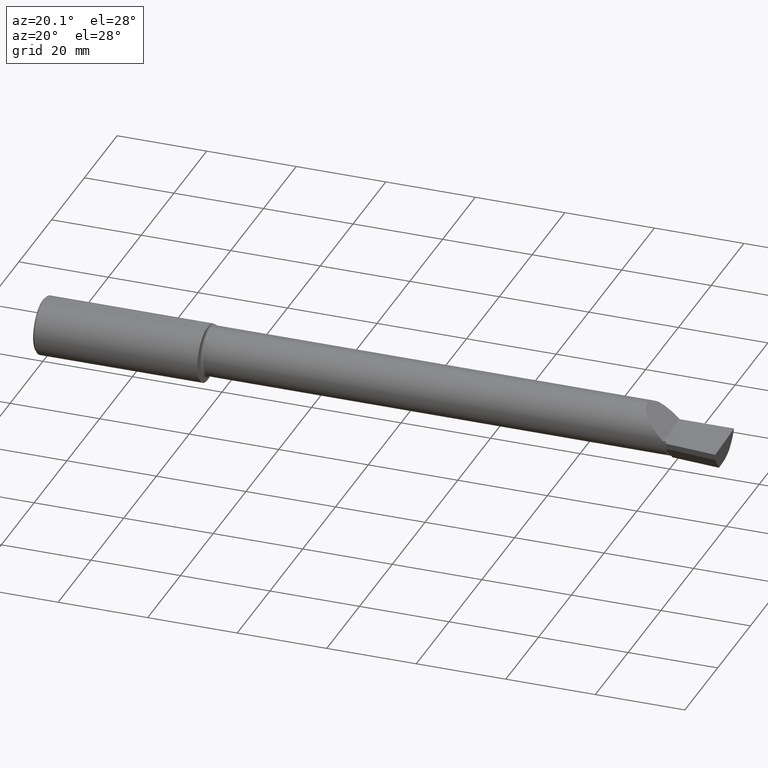
[diagram: clean part render]
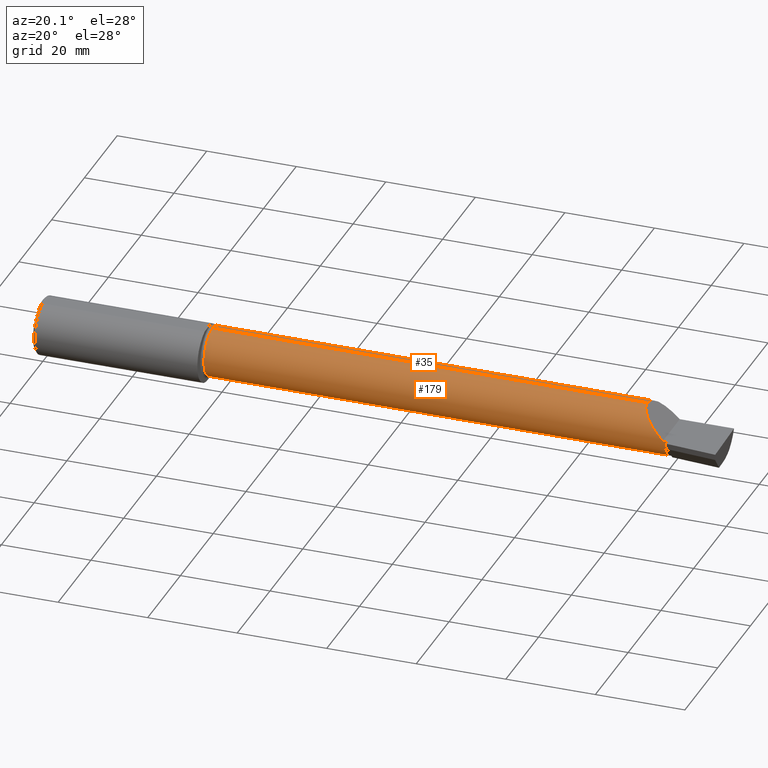
[diagram: same view with one multi-face feature highlighted, each face labeled with its STEP entity id]
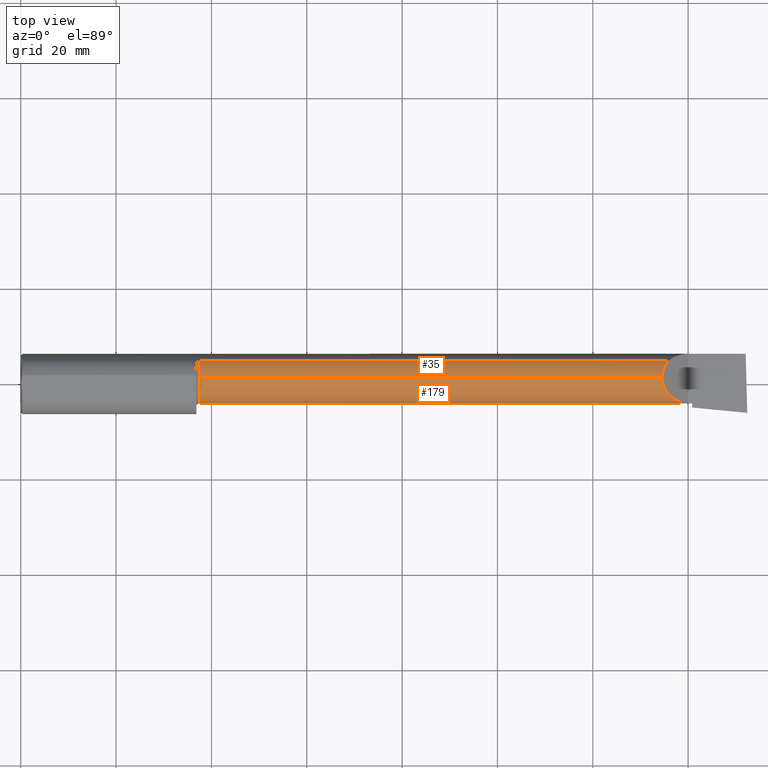
[diagram: same view with one multi-face feature highlighted, each face labeled with its STEP entity id]
A machine part, auxiliary view. The highlighted faces form ONE feature: a constant-radius fillet chain: 2 tangent blend faces with common blend radius 5.414 mm. The faces share edges in the B-rep.
A second angle (top view) of the same feature is appended — it is thin or edge-on in the first view.
Their STEP definitions:
[1] entity #35 (Cylinder):
#1 = CARTESIAN_POINT ( 'NONE',  ( 5.344079160038587517, 0.1868028301886762721, 0.1659208399614119367 ) ) ;
#35 = ADVANCED_FACE ( 'NONE', ( #693 ), #346, .T. ) ;
#61 = CARTESIAN_POINT ( 'NONE',  ( 0.000000000000000000, 0.05299999999999998462, 0.000000000000000000 ) ) ;
#101 = VERTEX_POINT ( 'NONE', #499 ) ;
#194 = DIRECTION ( 'NONE',  ( 1.000000000000000000, 0.000000000000000000, 0.000000000000000000 ) ) ;
#201 = ORIENTED_EDGE ( 'NONE', *, *, #610, .F. ) ;
#204 = LINE ( 'NONE', #440, #494 ) ;
#211 = AXIS2_PLACEMENT_3D ( 'NONE', #388, #685, #744 ) ;
#226 = ORIENTED_EDGE ( 'NONE', *, *, #305, .F. ) ;
#229 = EDGE_CURVE ( 'NONE', #670, #750, #204, .T. ) ;
#249 = ORIENTED_EDGE ( 'NONE', *, *, #673, .F. ) ;
#271 = VERTEX_POINT ( 'NONE', #374 ) ;
#280 = CARTESIAN_POINT ( 'NONE',  ( 5.344079160038587517, 0.1868028301886762721, 0.1659208399614119367 ) ) ;
#282 = ORIENTED_EDGE ( 'NONE', *, *, #229, .F. ) ;
#292 = EDGE_LOOP ( 'NONE', ( #226, #201, #282, #249 ) ) ;
#295 = VECTOR ( 'NONE', #558, 39.37007874015748143 ) ;
#305 = EDGE_CURVE ( 'NONE', #271, #101, #370, .T. ) ;
#325 = CARTESIAN_POINT ( 'NONE',  ( 0.000000000000000000, 0.05299999999999998462, 0.2131500000000002282 ) ) ;
#337 = CARTESIAN_POINT ( 'NONE',  ( 5.296849999999999170, 0.05299999999999998462, 0.2131500000000002282 ) ) ;
#339 = DIRECTION ( 'NONE',  ( 0.000000000000000000, 0.000000000000000000, 1.000000000000000000 ) ) ;
#346 = CYLINDRICAL_SURFACE ( 'NONE', #515, 0.2131500000000002282 ) ;
#370 = LINE ( 'NONE', #325, #295 ) ;
#374 = CARTESIAN_POINT ( 'NONE',  ( 5.296849999999999170, 0.05299999999999998462, 0.2131500000000002282 ) ) ;
#388 = CARTESIAN_POINT ( 'NONE',  ( 1.475000000000000533, 0.05299999999999998462, 0.000000000000000000 ) ) ;
#390 = DIRECTION ( 'NONE',  ( -1.000000000000000000, -0.000000000000000000, -0.000000000000000000 ) ) ;
#391 = CARTESIAN_POINT ( 'NONE',  ( 5.296849999999998282, 0.1021668565906554971, 0.2131500000000002837 ) ) ;
#434 =( BOUNDED_CURVE ( )  B_SPLINE_CURVE ( 3, ( #280, #691, #391, #337 ),
 .UNSPECIFIED., .F., .F. ) 
 B_SPLINE_CURVE_WITH_KNOTS ( ( 4, 4 ),
 ( 5.604538515477368144, 6.283185307179586232 ),
 .UNSPECIFIED. ) 
 CURVE ( )  GEOMETRIC_REPRESENTATION_ITEM ( )  RATIONAL_B_SPLINE_CURVE ( ( 1.000000000000000000, 0.9619867256453047411, 0.9619867256453047411, 1.000000000000000000 ) ) 
 REPRESENTATION_ITEM ( '' )  );
#440 = CARTESIAN_POINT ( 'NONE',  ( 3.510000000000000675, 0.1868028301886783815, 0.1659208399614098550 ) ) ;
#447 = CARTESIAN_POINT ( 'NONE',  ( 1.475000000000000533, 0.1868028301886768827, 0.1659208399614114093 ) ) ;
#450 = CIRCLE ( 'NONE', #211, 0.2131500000000005057 ) ;
#494 = VECTOR ( 'NONE', #194, 39.37007874015748143 ) ;
#499 = CARTESIAN_POINT ( 'NONE',  ( 1.475000000000000533, 0.05299999999999998462, 0.2131500000000005057 ) ) ;
#515 = AXIS2_PLACEMENT_3D ( 'NONE', #61, #390, #339 ) ;
#558 = DIRECTION ( 'NONE',  ( -1.000000000000000000, -0.000000000000000000, -0.000000000000000000 ) ) ;
#610 = EDGE_CURVE ( 'NONE', #750, #271, #434, .T. ) ;
#670 = VERTEX_POINT ( 'NONE', #447 ) ;
#673 = EDGE_CURVE ( 'NONE', #101, #670, #450, .T. ) ;
#685 = DIRECTION ( 'NONE',  ( -1.000000000000000000, -0.000000000000000000, -0.000000000000000000 ) ) ;
#691 = CARTESIAN_POINT ( 'NONE',  ( 5.313215146136122335, 0.1485302233682031792, 0.1967848538638768963 ) ) ;
#693 = FACE_OUTER_BOUND ( 'NONE', #292, .T. ) ;
#744 = DIRECTION ( 'NONE',  ( 0.000000000000000000, 0.000000000000000000, 1.000000000000000000 ) ) ;
#750 = VERTEX_POINT ( 'NONE', #1 ) ;
[2] entity #179 (Cylinder):
#23 = CARTESIAN_POINT ( 'NONE',  ( 5.510000000000000675, -0.1601500000000002644, -1.849216666712503932E-16 ) ) ;
#37 = CARTESIAN_POINT ( 'NONE',  ( 5.540481425188587217, -0.04977693083852387235, -0.1867379188486353037 ) ) ;
#42 = EDGE_CURVE ( 'NONE', #392, #170, #724, .T. ) ;
#69 = CARTESIAN_POINT ( 'NONE',  ( 5.522499172395929357, -0.1369718963205484863, -0.09666230448512427853 ) ) ;
#70 = CYLINDRICAL_SURFACE ( 'NONE', #615, 0.2131500000000002282 ) ;
#77 = DIRECTION ( 'NONE',  ( 1.000000000000000000, 0.000000000000000000, 0.000000000000000000 ) ) ;
#101 = VERTEX_POINT ( 'NONE', #499 ) ;
#108 = CARTESIAN_POINT ( 'NONE',  ( 5.510000000000000675, -0.1601500000000002644, -1.849216666712503932E-16 ) ) ;
#109 = VERTEX_POINT ( 'NONE', #657 ) ;
#119 = ORIENTED_EDGE ( 'NONE', *, *, #240, .T. ) ;
#123 = CARTESIAN_POINT ( 'NONE',  ( 5.385139620819824557, -0.1601500000000002644, 0.1248603791801748963 ) ) ;
#125 = CARTESIAN_POINT ( 'NONE',  ( 0.000000000000000000, 0.05299999999999998462, 0.000000000000000000 ) ) ;
#145 = DIRECTION ( 'NONE',  ( -1.000000000000000000, -0.000000000000000000, -0.000000000000000000 ) ) ;
#146 = DIRECTION ( 'NONE',  ( 0.000000000000000000, 0.000000000000000000, 1.000000000000000000 ) ) ;
#147 = ORIENTED_EDGE ( 'NONE', *, *, #326, .F. ) ;
#149 = CIRCLE ( 'NONE', #589, 0.2131499999999999784 ) ;
#153 = CARTESIAN_POINT ( 'NONE',  ( 5.296849999999997394, -0.07186037918017493253, 0.2131500000000002004 ) ) ;
#154 = CARTESIAN_POINT ( 'NONE',  ( 5.524413082451228085, -0.1170951804205968561, -0.1357263163794374394 ) ) ;
#161 = VERTEX_POINT ( 'NONE', #661 ) ;
#167 = VERTEX_POINT ( 'NONE', #188 ) ;
#170 = VERTEX_POINT ( 'NONE', #609 ) ;
#175 = VERTEX_POINT ( 'NONE', #23 ) ;
#179 = ADVANCED_FACE ( 'NONE', ( #599 ), #70, .T. ) ;
#183 = DIRECTION ( 'NONE',  ( 0.000000000000000000, 0.000000000000000000, 1.000000000000000000 ) ) ;
#188 = CARTESIAN_POINT ( 'NONE',  ( 5.544999999999999929, 0.05299999999999996381, -0.2131499999999999784 ) ) ;
#195 =( BOUNDED_CURVE ( )  B_SPLINE_CURVE ( 3, ( #682, #37, #671, #735 ),
 .UNSPECIFIED., .F., .T. ) 
 B_SPLINE_CURVE_WITH_KNOTS ( ( 4, 4 ),
 ( 3.425081864342414129, 3.440661644967338617 ),
 .UNSPECIFIED. ) 
 CURVE ( )  GEOMETRIC_REPRESENTATION_ITEM ( )  RATIONAL_B_SPLINE_CURVE ( ( 1.000000000000000000, 0.9999797726385939445, 0.9999797726385939445, 1.000000000000000000 ) ) 
 REPRESENTATION_ITEM ( '' )  );
#207 = EDGE_CURVE ( 'NONE', #161, #109, #195, .T. ) ;
#215 = CARTESIAN_POINT ( 'NONE',  ( 0.000000000000000000, 0.05300000000000001238, -0.2131500000000002282 ) ) ;
#217 = CARTESIAN_POINT ( 'NONE',  ( 5.537805100486888676, -0.1353538176560926676, -0.09979413120599980869 ) ) ;
#236 = DIRECTION ( 'NONE',  ( -1.000000000000000000, -0.000000000000000000, -0.000000000000000000 ) ) ;
#237 = VECTOR ( 'NONE', #145, 39.37007874015748143 ) ;
#240 = EDGE_CURVE ( 'NONE', #170, #268, #149, .T. ) ;
#259 = ORIENTED_EDGE ( 'NONE', *, *, #567, .F. ) ;
#268 = VERTEX_POINT ( 'NONE', #500 ) ;
#270 = DIRECTION ( 'NONE',  ( -1.000000000000000000, -0.000000000000000000, -0.000000000000000000 ) ) ;
#271 = VERTEX_POINT ( 'NONE', #374 ) ;
#274 =( BOUNDED_CURVE ( )  B_SPLINE_CURVE ( 3, ( #646, #153, #123, #108 ),
 .UNSPECIFIED., .F., .T. ) 
 B_SPLINE_CURVE_WITH_KNOTS ( ( 4, 4 ),
 ( 0.000000000000000000, 1.570796326794896780 ),
 .UNSPECIFIED. ) 
 CURVE ( )  GEOMETRIC_REPRESENTATION_ITEM ( )  RATIONAL_B_SPLINE_CURVE ( ( 1.000000000000000000, 0.8047378541243649375, 0.8047378541243649375, 1.000000000000000000 ) ) 
 REPRESENTATION_ITEM ( '' )  );
#294 = CARTESIAN_POINT ( 'NONE',  ( 5.522499172395929357, -0.1369718963205484863, -0.09666230448512427853 ) ) ;
#295 = VECTOR ( 'NONE', #558, 39.37007874015748143 ) ;
#301 = EDGE_LOOP ( 'NONE', ( #533, #473, #358, #662, #760, #119, #259, #352, #408, #147 ) ) ;
#305 = EDGE_CURVE ( 'NONE', #271, #101, #370, .T. ) ;
#325 = CARTESIAN_POINT ( 'NONE',  ( 0.000000000000000000, 0.05299999999999998462, 0.2131500000000002282 ) ) ;
#326 = EDGE_CURVE ( 'NONE', #476, #101, #638, .T. ) ;
#345 = DIRECTION ( 'NONE',  ( 0.000000000000000000, 0.000000000000000000, 1.000000000000000000 ) ) ;
#352 = ORIENTED_EDGE ( 'NONE', *, *, #377, .F. ) ;
#358 = ORIENTED_EDGE ( 'NONE', *, *, #207, .T. ) ;
#360 = DIRECTION ( 'NONE',  ( -1.000000000000000000, -0.000000000000000000, -0.000000000000000000 ) ) ;
#370 = LINE ( 'NONE', #325, #295 ) ;
#372 = EDGE_CURVE ( 'NONE', #167, #161, #397, .T. ) ;
#374 = CARTESIAN_POINT ( 'NONE',  ( 5.296849999999999170, 0.05299999999999998462, 0.2131500000000002282 ) ) ;
#377 = EDGE_CURVE ( 'NONE', #271, #175, #274, .T. ) ;
#392 = VERTEX_POINT ( 'NONE', #69 ) ;
#397 = CIRCLE ( 'NONE', #664, 0.2131499999999999784 ) ;
#408 = ORIENTED_EDGE ( 'NONE', *, *, #305, .T. ) ;
#413 = AXIS2_PLACEMENT_3D ( 'NONE', #539, #717, #345 ) ;
#427 = LINE ( 'NONE', #720, #562 ) ;
#441 = LINE ( 'NONE', #215, #237 ) ;
#445 = CARTESIAN_POINT ( 'NONE',  ( 5.527364221733841454, -0.08644642713185425598, -0.1670589636038934400 ) ) ;
#453 = CARTESIAN_POINT ( 'NONE',  ( 5.531082512009718677, -0.04783050615766583358, -0.1877927888072090101 ) ) ;
#461 = CARTESIAN_POINT ( 'NONE',  ( 5.544999999999999929, -0.1345157694617467592, -0.1013447517297718370 ) ) ;
#473 = ORIENTED_EDGE ( 'NONE', *, *, #372, .T. ) ;
#476 = VERTEX_POINT ( 'NONE', #753 ) ;
#488 = DIRECTION ( 'NONE',  ( 0.000000000000000000, 0.000000000000000000, 1.000000000000000000 ) ) ;
#499 = CARTESIAN_POINT ( 'NONE',  ( 1.475000000000000533, 0.05299999999999998462, 0.2131500000000005057 ) ) ;
#500 = CARTESIAN_POINT ( 'NONE',  ( 5.544999999999999929, -0.1601499999999999868, 4.235963549344505753E-16 ) ) ;
#521 =( BOUNDED_CURVE ( )  B_SPLINE_CURVE ( 3, ( #453, #445, #154, #626 ),
 .UNSPECIFIED., .F., .T. ) 
 B_SPLINE_CURVE_WITH_KNOTS ( ( 4, 4 ),
 ( 5.205137849474832379, 5.812503257434994630 ),
 .UNSPECIFIED. ) 
 CURVE ( )  GEOMETRIC_REPRESENTATION_ITEM ( )  RATIONAL_B_SPLINE_CURVE ( ( 1.000000000000000000, 0.9694944665783490345, 0.9694944665783490345, 1.000000000000000000 ) ) 
 REPRESENTATION_ITEM ( '' )  );
#533 = ORIENTED_EDGE ( 'NONE', *, *, #684, .F. ) ;
#539 = CARTESIAN_POINT ( 'NONE',  ( 1.475000000000000533, 0.05299999999999998462, 0.000000000000000000 ) ) ;
#558 = DIRECTION ( 'NONE',  ( -1.000000000000000000, -0.000000000000000000, -0.000000000000000000 ) ) ;
#562 = VECTOR ( 'NONE', #77, 39.37007874015748143 ) ;
#567 = EDGE_CURVE ( 'NONE', #175, #268, #427, .T. ) ;
#589 = AXIS2_PLACEMENT_3D ( 'NONE', #680, #270, #146 ) ;
#598 = CARTESIAN_POINT ( 'NONE',  ( 5.544999999999999929, 0.05299999999999998462, 0.000000000000000000 ) ) ;
#599 = FACE_OUTER_BOUND ( 'NONE', #301, .T. ) ;
#609 = CARTESIAN_POINT ( 'NONE',  ( 5.544999999999999929, -0.1345157694617467592, -0.1013447517297718370 ) ) ;
#615 = AXIS2_PLACEMENT_3D ( 'NONE', #125, #360, #488 ) ;
#626 = CARTESIAN_POINT ( 'NONE',  ( 5.522499172395929357, -0.1369718963205484863, -0.09666230448512427853 ) ) ;
#638 = CIRCLE ( 'NONE', #413, 0.2131500000000005057 ) ;
#646 = CARTESIAN_POINT ( 'NONE',  ( 5.296849999999999170, 0.05299999999999998462, 0.2131500000000002282 ) ) ;
#657 = CARTESIAN_POINT ( 'NONE',  ( 5.531082512009718677, -0.04783050615766583358, -0.1877927888072090101 ) ) ;
#661 = CARTESIAN_POINT ( 'NONE',  ( 5.544999999999999929, -0.05074392122494211788, -0.1861991442216451575 ) ) ;
#662 = ORIENTED_EDGE ( 'NONE', *, *, #695, .T. ) ;
#664 = AXIS2_PLACEMENT_3D ( 'NONE', #598, #236, #183 ) ;
#671 = CARTESIAN_POINT ( 'NONE',  ( 5.535842168685240594, -0.04880577283880122019, -0.1872691444557822160 ) ) ;
#680 = CARTESIAN_POINT ( 'NONE',  ( 5.544999999999999929, 0.05299999999999998462, 0.000000000000000000 ) ) ;
#682 = CARTESIAN_POINT ( 'NONE',  ( 5.544999999999999929, -0.05074392122494211788, -0.1861991442216451575 ) ) ;
#684 = EDGE_CURVE ( 'NONE', #167, #476, #441, .T. ) ;
#695 = EDGE_CURVE ( 'NONE', #109, #392, #521, .T. ) ;
#717 = DIRECTION ( 'NONE',  ( -1.000000000000000000, -0.000000000000000000, -0.000000000000000000 ) ) ;
#720 = CARTESIAN_POINT ( 'NONE',  ( 4.678149108241350816E-32, -0.1601500000000002366, 4.235963549344508711E-16 ) ) ;
#724 =( BOUNDED_CURVE ( )  B_SPLINE_CURVE ( 3, ( #294, #755, #217, #461 ),
 .UNSPECIFIED., .F., .T. ) 
 B_SPLINE_CURVE_WITH_KNOTS ( ( 4, 4 ),
 ( 2.833296237007176366, 2.858103442837169439 ),
 .UNSPECIFIED. ) 
 CURVE ( )  GEOMETRIC_REPRESENTATION_ITEM ( )  RATIONAL_B_SPLINE_CURVE ( ( 1.000000000000000000, 0.9999487175357286706, 0.9999487175357286706, 1.000000000000000000 ) ) 
 REPRESENTATION_ITEM ( '' )  );
#735 = CARTESIAN_POINT ( 'NONE',  ( 5.531082512009718677, -0.04783050615766583358, -0.1877927888072090101 ) ) ;
#753 = CARTESIAN_POINT ( 'NONE',  ( 1.475000000000000533, 0.05300000000000001238, -0.2131500000000005057 ) ) ;
#755 = CARTESIAN_POINT ( 'NONE',  ( 5.530304439966511332, -0.1361725685965923804, -0.09823323541120104752 ) ) ;
#760 = ORIENTED_EDGE ( 'NONE', *, *, #42, .T. ) ;